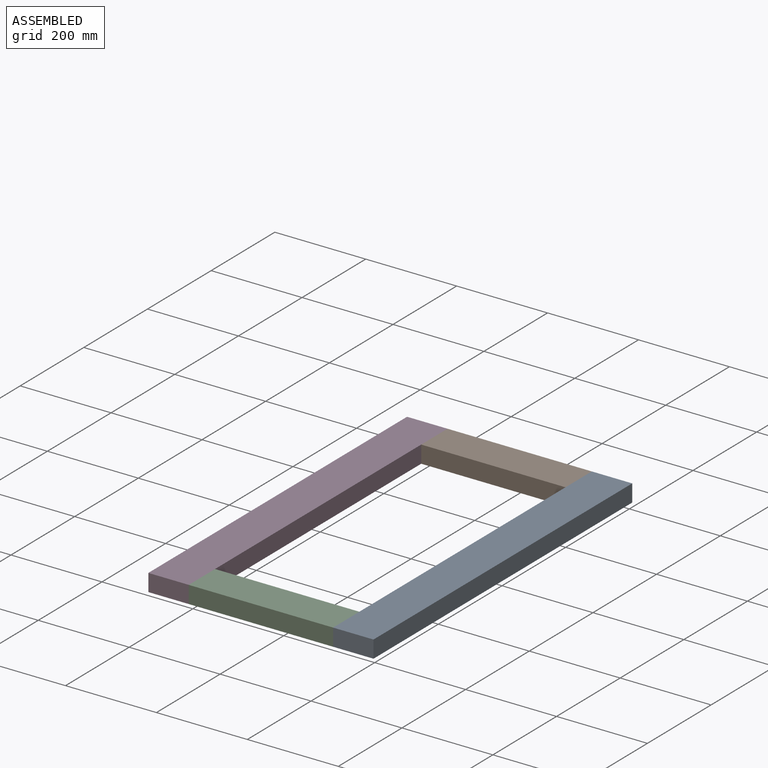
[diagram: assembled view]
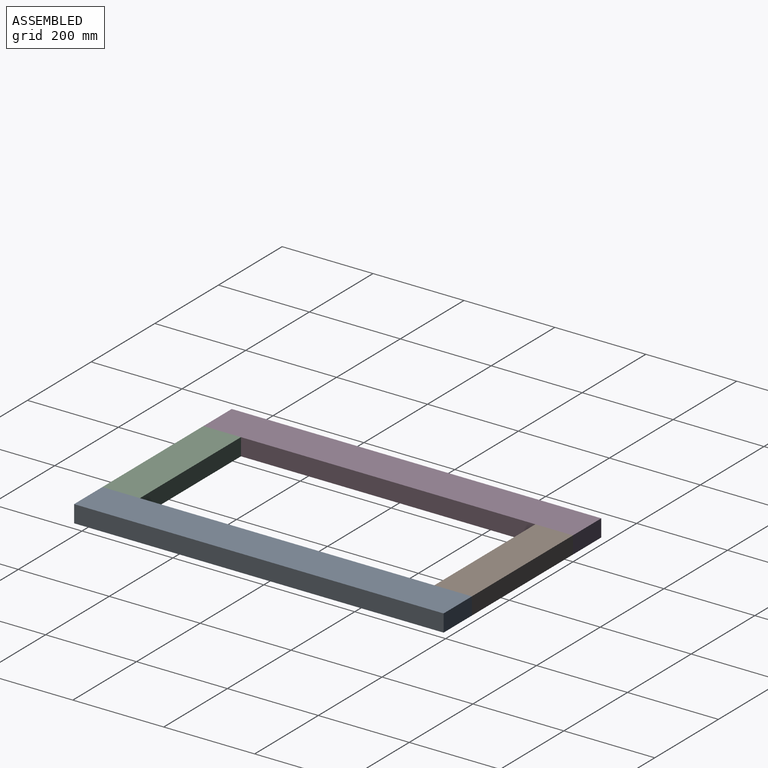
[diagram: assembled view, second angle]
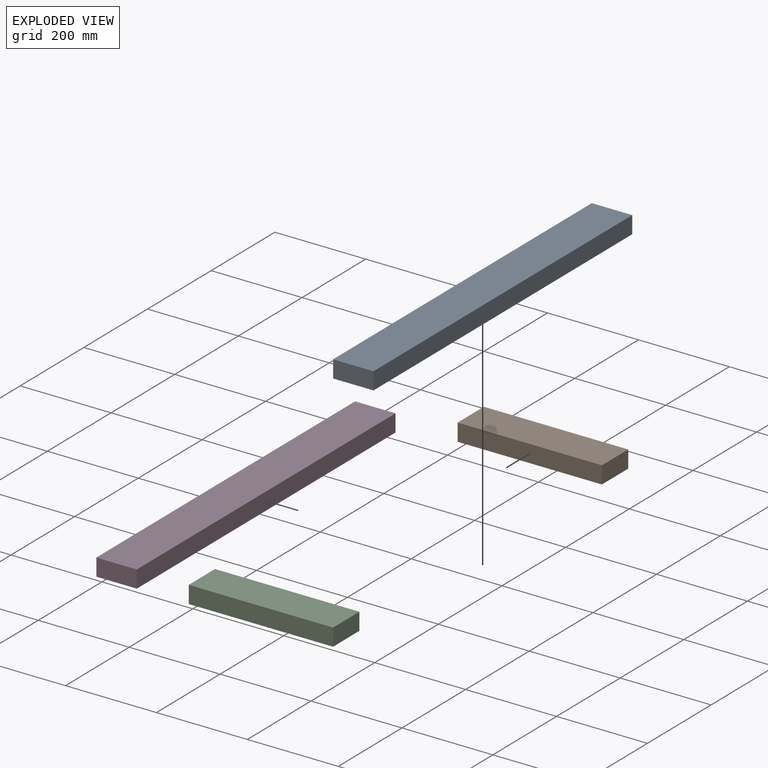
[diagram: exploded view]
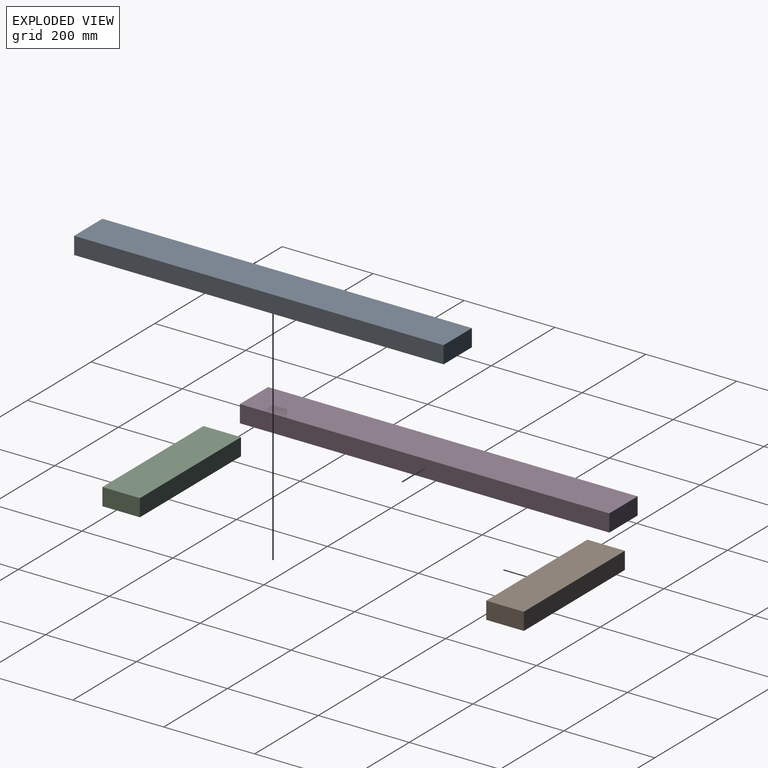
[diagram: exploded view, second angle]
ASSEMBLY  parts=4 mates=9
PART A: 6 faces, bbox 812.8x88.9x38.1 mm
  f0: plane 812.8x38.1mm, normal (0,1,0), area 30967.7mm2, adj f1,f3,f4,f5
  f1: plane 812.8x88.9mm, normal (0,0,1), area 72257.9mm2, adj f0,f2,f4,f5
  f2: plane 812.8x38.1mm, normal (0,-1,0), area 30967.7mm2, adj f1,f3,f4,f5
  f3: plane 812.8x88.9mm, normal (0,0,-1), area 72257.9mm2, adj f0,f2,f4,f5
  f4: plane 88.9x38.1mm, normal (1,0,0), area 3387.1mm2, adj f0,f1,f2,f3
  f5: plane 88.9x38.1mm, normal (-1,0,0), area 3387.1mm2, adj f0,f1,f2,f3
PART B: 6 faces, bbox 317.5x82.6x38.1 mm
  f0: plane 317.5x38.1mm, normal (0,1,0), area 12096.7mm2, adj f1,f3,f4,f5
  f1: plane 317.5x82.55mm, normal (0,0,1), area 26209.6mm2, adj f0,f2,f4,f5
  f2: plane 317.5x38.1mm, normal (0,-1,0), area 12096.7mm2, adj f1,f3,f4,f5
  f3: plane 317.5x82.55mm, normal (0,0,-1), area 26209.6mm2, adj f0,f2,f4,f5
  f4: plane 82.55x38.1mm, normal (1,0,0), area 3145.2mm2, adj f0,f1,f2,f3
  f5: plane 82.55x38.1mm, normal (-1,0,0), area 3145.2mm2, adj f0,f1,f2,f3
PART C: same geometry as B
PART D: same geometry as A
PLACE A rot(axis=(0.71,0.71,0),180deg) t=(361.95,-812.8,-19.05)mm
PLACE B t=(0,-41.28,-19.05)mm
PLACE C t=(0,-771.52,-19.05)mm
PLACE D rot(axis=(0,0,-1),90deg) t=(-44.45,0,-19.05)mm
MATE planar C.f2 <-> D.f4  axis (0,-1,0) through (0,-812.8,-19.05)mm
MATE planar D.f0 <-> B.f5  axis (1,0,0) through (0,0,-19.05)mm
MATE planar A.f3 <-> C.f1  axis (0,0,1) through (361.95,-406.4,0)mm
MATE planar B.f0 <-> D.f5  axis (0,1,0) through (0,0,-19.05)mm
MATE planar B.f1 <-> D.f1  axis (0,0,1) through (0,-41.28,0)mm
MATE planar A.f5 <-> C.f2  axis (0,-1,0) through (317.5,-812.8,-19.05)mm
MATE planar C.f5 <-> D.f0  axis (-1,0,0) through (0,-771.52,-19.05)mm
MATE planar C.f1 <-> D.f1  axis (0,0,1) through (0,-771.52,0)mm
MATE planar A.f2 <-> C.f4  axis (-1,0,0) through (317.5,-406.4,-38.1)mm
